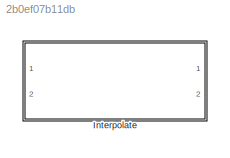
MODEL slx_2b0ef07b11db
KIND library
CONFIG AbsTol = auto
CONFIG EnableMultiTasking = off
CONFIG FixedStep = auto
CONFIG MaxStep = auto
CONFIG MinStep = auto
CONFIG RelTol = 1e-3
CONFIG SampleTimeConstraint = Unconstrained
CONFIG Solver = VariableStepAuto
CONFIG SolverName = VariableStepAuto
CONFIG StartTime = 0.0
CONFIG StopTime = 10.0
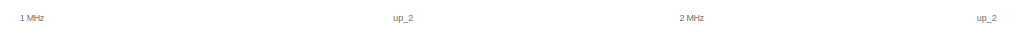
[diagram: Interpolate - part 1/6, top left region]
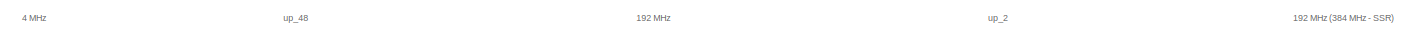
[diagram: Interpolate - part 2/6, top center region]
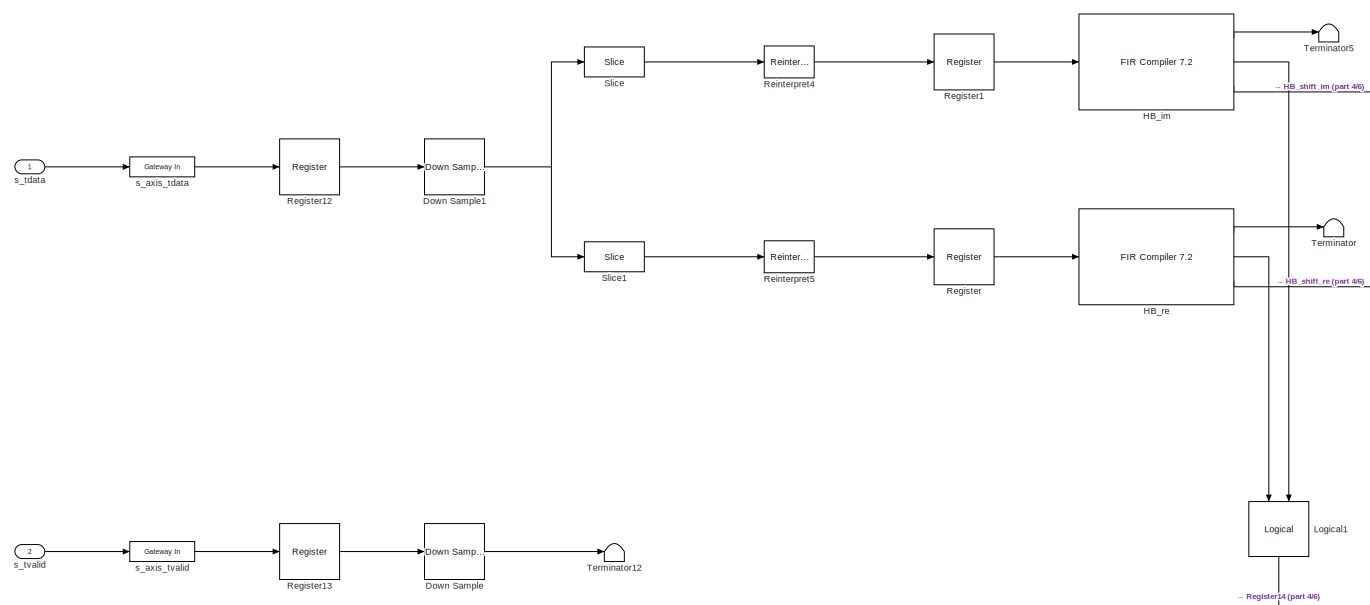
[diagram: Interpolate - part 3/6, middle left region]
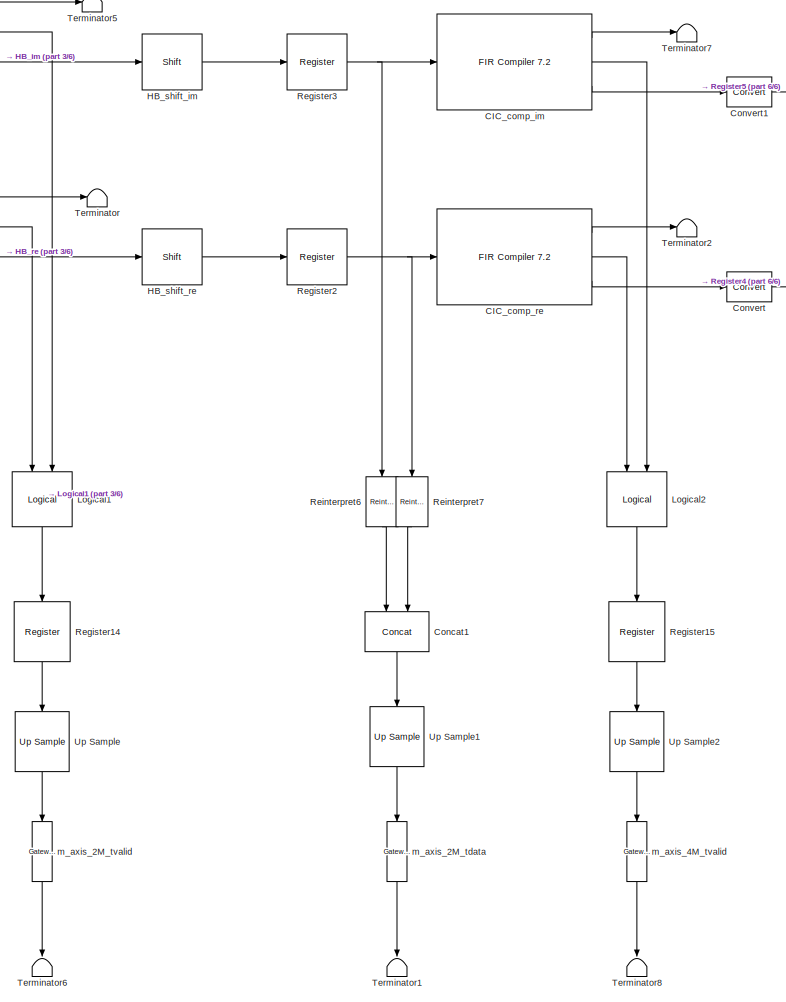
[diagram: Interpolate - part 4/6, center side, full height]
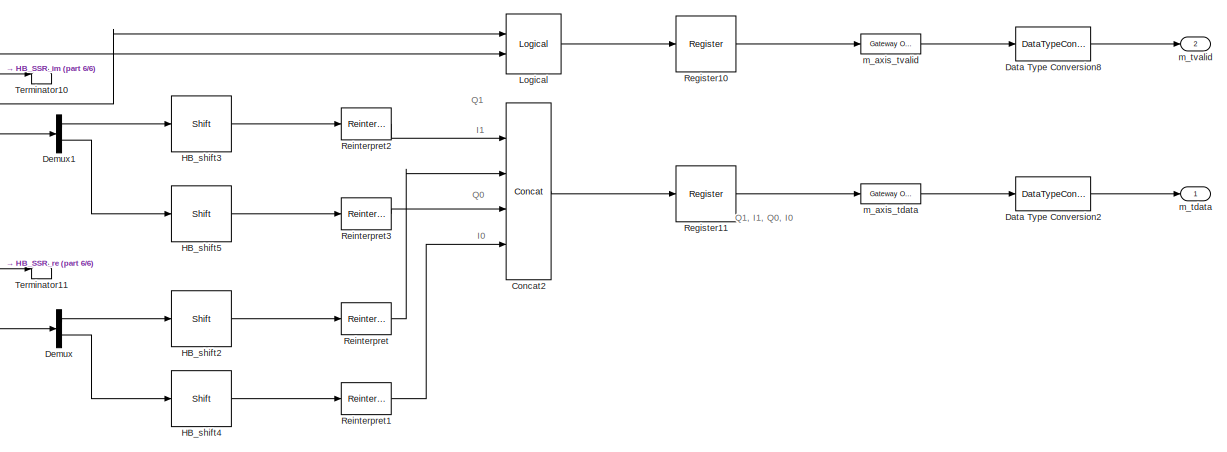
[diagram: Interpolate - part 5/6, top right region]
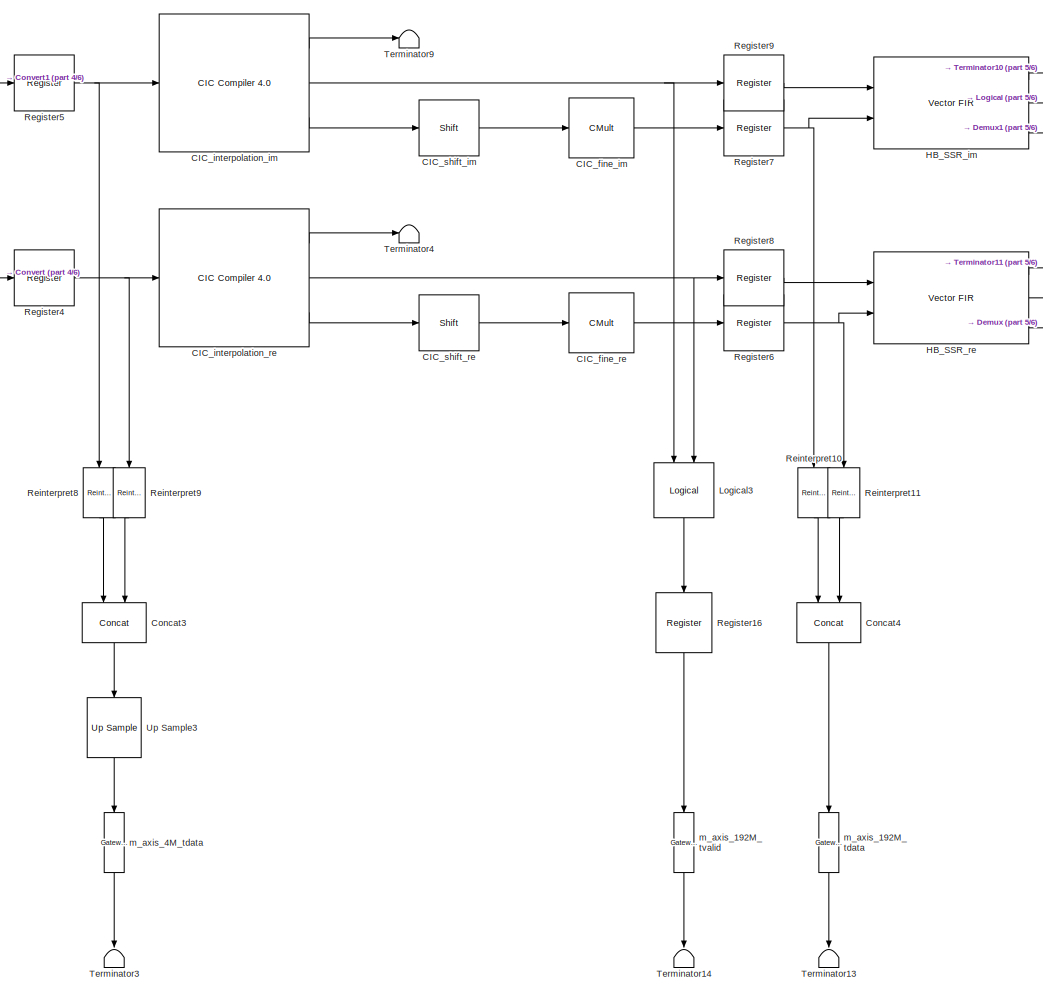
[diagram: Interpolate - part 6/6, center side, full height]
BLOCK [SubSystem] Interpolate
  Ports = [2, 2]
  RequestExecContextInheritance = off
BLOCK [Reference] Interpolate/CIC_comp_im  REF=xbsIndex_r4/FIR Compiler 7.2 
  Ports = [1, 3]
  SourceBlock = xbsIndex_r4/FIR Compiler 7.2
  SourceType = Xilinx FIR Compiler 7.2 Block
BLOCK [Reference] Interpolate/CIC_comp_re  REF=xbsIndex_r4/FIR Compiler 7.2 
  Ports = [1, 3]
  SourceBlock = xbsIndex_r4/FIR Compiler 7.2
  SourceType = Xilinx FIR Compiler 7.2 Block
BLOCK [Reference] Interpolate/CIC_fine_im  REF=xbsIndex_r4/CMult
  Ports = [1, 1]
  SourceBlock = xbsIndex_r4/CMult
  SourceType = Xilinx Constant Multiplier Block
BLOCK [Reference] Interpolate/CIC_fine_re  REF=xbsIndex_r4/CMult
  Ports = [1, 1]
  SourceBlock = xbsIndex_r4/CMult
  SourceType = Xilinx Constant Multiplier Block
BLOCK [Reference] Interpolate/CIC_interpolation_im  REF=xbsIndex_r4/CIC Compiler 4.0 
  Ports = [1, 3]
  SourceBlock = xbsIndex_r4/CIC Compiler 4.0
  SourceType = Xilinx CIC Compiler 4.0 Block
BLOCK [Reference] Interpolate/CIC_interpolation_re  REF=xbsIndex_r4/CIC Compiler 4.0 
  Ports = [1, 3]
  SourceBlock = xbsIndex_r4/CIC Compiler 4.0
  SourceType = Xilinx CIC Compiler 4.0 Block
BLOCK [Reference] Interpolate/CIC_shift_im  REF=xbsIndex_r4/Shift
  Ports = [1, 1]
  SourceBlock = xbsIndex_r4/Shift
  SourceType = Xilinx Binary Shift Operator Block
BLOCK [Reference] Interpolate/CIC_shift_re  REF=xbsIndex_r4/Shift
  Ports = [1, 1]
  SourceBlock = xbsIndex_r4/Shift
  SourceType = Xilinx Binary Shift Operator Block
BLOCK [Reference] Interpolate/Concat1  REF=xbsIndex_r4/Concat
  NameLocation = right
  Ports = [2, 1]
  SourceBlock = xbsIndex_r4/Concat
  SourceType = Xilinx Bus Concatenator Block
BLOCK [Reference] Interpolate/Concat2  REF=xbsIndex_r4/Concat
  Ports = [4, 1]
  SourceBlock = xbsIndex_r4/Concat
  SourceType = Xilinx Bus Concatenator Block
BLOCK [Reference] Interpolate/Concat3  REF=xbsIndex_r4/Concat
  NameLocation = right
  Ports = [2, 1]
  SourceBlock = xbsIndex_r4/Concat
  SourceType = Xilinx Bus Concatenator Block
BLOCK [Reference] Interpolate/Concat4  REF=xbsIndex_r4/Concat
  NameLocation = right
  Ports = [2, 1]
  SourceBlock = xbsIndex_r4/Concat
  SourceType = Xilinx Bus Concatenator Block
BLOCK [Reference] Interpolate/Convert  REF=xbsIndex_r4/Convert
  Ports = [1, 1]
  SourceBlock = xbsIndex_r4/Convert
  SourceType = Xilinx Type Converter Block
BLOCK [Reference] Interpolate/Convert1  REF=xbsIndex_r4/Convert
  Ports = [1, 1]
  SourceBlock = xbsIndex_r4/Convert
  SourceType = Xilinx Type Converter Block
BLOCK [DataTypeConversion] Interpolate/Data Type Conversion2
  ConvertRealWorld = Stored Integer (SI)
  OutDataTypeStr = uint64
  RndMeth = Floor
  SaturateOnIntegerOverflow = off
BLOCK [DataTypeConversion] Interpolate/Data Type Conversion8
  ConvertRealWorld = Stored Integer (SI)
  OutDataTypeStr = boolean
  RndMeth = Floor
  SaturateOnIntegerOverflow = off
BLOCK [Demux] Interpolate/Demux
  Outputs = 2
  Ports = [1, 2]
BLOCK [Demux] Interpolate/Demux1
  Outputs = 2
  Ports = [1, 2]
BLOCK [Reference] Interpolate/Down Sample  REF=xbsIndex_r4/Down Sample
  Ports = [1, 1]
  SourceBlock = xbsIndex_r4/Down Sample
  SourceType = Xilinx Down Sampler Block
BLOCK [Reference] Interpolate/Down Sample1  REF=xbsIndex_r4/Down Sample
  Ports = [1, 1]
  SourceBlock = xbsIndex_r4/Down Sample
  SourceType = Xilinx Down Sampler Block
BLOCK [Reference] Interpolate/HB_SSR_im  REF=xrbsSSR_Library/Vector FIR
  Ports = [2, 3]
  SourceBlock = xrbsSSR_Library/Vector FIR
  SourceProductName = Xilinx SSR Blockset
  SourceType = Xilinx Vector FIR Compiler 7.2 Block
BLOCK [Reference] Interpolate/HB_SSR_re  REF=xrbsSSR_Library/Vector FIR
  Ports = [2, 3]
  SourceBlock = xrbsSSR_Library/Vector FIR
  SourceProductName = Xilinx SSR Blockset
  SourceType = Xilinx Vector FIR Compiler 7.2 Block
BLOCK [Reference] Interpolate/HB_im  REF=xbsIndex_r4/FIR Compiler 7.2 
  Ports = [1, 3]
  SourceBlock = xbsIndex_r4/FIR Compiler 7.2
  SourceType = Xilinx FIR Compiler 7.2 Block
BLOCK [Reference] Interpolate/HB_re  REF=xbsIndex_r4/FIR Compiler 7.2 
  Ports = [1, 3]
  SourceBlock = xbsIndex_r4/FIR Compiler 7.2
  SourceType = Xilinx FIR Compiler 7.2 Block
BLOCK [Reference] Interpolate/HB_shift2  REF=xbsIndex_r4/Shift
  Ports = [1, 1]
  SourceBlock = xbsIndex_r4/Shift
  SourceType = Xilinx Binary Shift Operator Block
BLOCK [Reference] Interpolate/HB_shift3  REF=xbsIndex_r4/Shift
  Ports = [1, 1]
  SourceBlock = xbsIndex_r4/Shift
  SourceType = Xilinx Binary Shift Operator Block
BLOCK [Reference] Interpolate/HB_shift4  REF=xbsIndex_r4/Shift
  Ports = [1, 1]
  SourceBlock = xbsIndex_r4/Shift
  SourceType = Xilinx Binary Shift Operator Block
BLOCK [Reference] Interpolate/HB_shift5  REF=xbsIndex_r4/Shift
  Ports = [1, 1]
  SourceBlock = xbsIndex_r4/Shift
  SourceType = Xilinx Binary Shift Operator Block
BLOCK [Reference] Interpolate/HB_shift_im  REF=xbsIndex_r4/Shift
  Ports = [1, 1]
  SourceBlock = xbsIndex_r4/Shift
  SourceType = Xilinx Binary Shift Operator Block
BLOCK [Reference] Interpolate/HB_shift_re  REF=xbsIndex_r4/Shift
  Ports = [1, 1]
  SourceBlock = xbsIndex_r4/Shift
  SourceType = Xilinx Binary Shift Operator Block
BLOCK [Reference] Interpolate/Logical  REF=xbsIndex_r4/Logical
  Ports = [2, 1]
  SourceBlock = xbsIndex_r4/Logical
  SourceType = Xilinx Logical Block Block
BLOCK [Reference] Interpolate/Logical1  REF=xbsIndex_r4/Logical
  NameLocation = left
  Ports = [2, 1]
  SourceBlock = xbsIndex_r4/Logical
  SourceType = Xilinx Logical Block Block
BLOCK [Reference] Interpolate/Logical2  REF=xbsIndex_r4/Logical
  NameLocation = left
  Ports = [2, 1]
  SourceBlock = xbsIndex_r4/Logical
  SourceType = Xilinx Logical Block Block
BLOCK [Reference] Interpolate/Logical3  REF=xbsIndex_r4/Logical
  NameLocation = left
  Ports = [2, 1]
  SourceBlock = xbsIndex_r4/Logical
  SourceType = Xilinx Logical Block Block
BLOCK [Reference] Interpolate/Register  REF=xbsIndex_r4/Register
  Ports = [1, 1]
  SourceBlock = xbsIndex_r4/Register
  SourceType = Xilinx Register Block
BLOCK [Reference] Interpolate/Register1  REF=xbsIndex_r4/Register
  Ports = [1, 1]
  SourceBlock = xbsIndex_r4/Register
  SourceType = Xilinx Register Block
BLOCK [Reference] Interpolate/Register10  REF=xbsIndex_r4/Register
  Ports = [1, 1]
  SourceBlock = xbsIndex_r4/Register
  SourceType = Xilinx Register Block
BLOCK [Reference] Interpolate/Register11  REF=xbsIndex_r4/Register
  Ports = [1, 1]
  SourceBlock = xbsIndex_r4/Register
  SourceType = Xilinx Register Block
BLOCK [Reference] Interpolate/Register12  REF=xbsIndex_r4/Register
  Ports = [1, 1]
  SourceBlock = xbsIndex_r4/Register
  SourceType = Xilinx Register Block
BLOCK [Reference] Interpolate/Register13  REF=xbsIndex_r4/Register
  Ports = [1, 1]
  SourceBlock = xbsIndex_r4/Register
  SourceType = Xilinx Register Block
BLOCK [Reference] Interpolate/Register14  REF=xbsIndex_r4/Register
  NameLocation = left
  Ports = [1, 1]
  SourceBlock = xbsIndex_r4/Register
  SourceType = Xilinx Register Block
BLOCK [Reference] Interpolate/Register15  REF=xbsIndex_r4/Register
  NameLocation = left
  Ports = [1, 1]
  SourceBlock = xbsIndex_r4/Register
  SourceType = Xilinx Register Block
BLOCK [Reference] Interpolate/Register16  REF=xbsIndex_r4/Register
  NameLocation = left
  Ports = [1, 1]
  SourceBlock = xbsIndex_r4/Register
  SourceType = Xilinx Register Block
BLOCK [Reference] Interpolate/Register2  REF=xbsIndex_r4/Register
  Ports = [1, 1]
  SourceBlock = xbsIndex_r4/Register
  SourceType = Xilinx Register Block
BLOCK [Reference] Interpolate/Register3  REF=xbsIndex_r4/Register
  Ports = [1, 1]
  SourceBlock = xbsIndex_r4/Register
  SourceType = Xilinx Register Block
BLOCK [Reference] Interpolate/Register4  REF=xbsIndex_r4/Register
  Ports = [1, 1]
  SourceBlock = xbsIndex_r4/Register
  SourceType = Xilinx Register Block
BLOCK [Reference] Interpolate/Register5  REF=xbsIndex_r4/Register
  Ports = [1, 1]
  SourceBlock = xbsIndex_r4/Register
  SourceType = Xilinx Register Block
BLOCK [Reference] Interpolate/Register6  REF=xbsIndex_r4/Register
  Ports = [1, 1]
  SourceBlock = xbsIndex_r4/Register
  SourceType = Xilinx Register Block
BLOCK [Reference] Interpolate/Register7  REF=xbsIndex_r4/Register
  Ports = [1, 1]
  SourceBlock = xbsIndex_r4/Register
  SourceType = Xilinx Register Block
BLOCK [Reference] Interpolate/Register8  REF=xbsIndex_r4/Register
  Ports = [1, 1]
  SourceBlock = xbsIndex_r4/Register
  SourceType = Xilinx Register Block
BLOCK [Reference] Interpolate/Register9  REF=xbsIndex_r4/Register
  Ports = [1, 1]
  SourceBlock = xbsIndex_r4/Register
  SourceType = Xilinx Register Block
BLOCK [Reference] Interpolate/Reinterpret  REF=xbsIndex_r4/Reinterpret
  Ports = [1, 1]
  SourceBlock = xbsIndex_r4/Reinterpret
  SourceType = Xilinx Type Reinterpreter Block
BLOCK [Reference] Interpolate/Reinterpret1  REF=xbsIndex_r4/Reinterpret
  Ports = [1, 1]
  SourceBlock = xbsIndex_r4/Reinterpret
  SourceType = Xilinx Type Reinterpreter Block
BLOCK [Reference] Interpolate/Reinterpret10  REF=xbsIndex_r4/Reinterpret
  NameLocation = left
  Ports = [1, 1]
  SourceBlock = xbsIndex_r4/Reinterpret
  SourceType = Xilinx Type Reinterpreter Block
BLOCK [Reference] Interpolate/Reinterpret11  REF=xbsIndex_r4/Reinterpret
  NameLocation = left
  Ports = [1, 1]
  SourceBlock = xbsIndex_r4/Reinterpret
  SourceType = Xilinx Type Reinterpreter Block
BLOCK [Reference] Interpolate/Reinterpret2  REF=xbsIndex_r4/Reinterpret
  Ports = [1, 1]
  SourceBlock = xbsIndex_r4/Reinterpret
  SourceType = Xilinx Type Reinterpreter Block
BLOCK [Reference] Interpolate/Reinterpret3  REF=xbsIndex_r4/Reinterpret
  Ports = [1, 1]
  SourceBlock = xbsIndex_r4/Reinterpret
  SourceType = Xilinx Type Reinterpreter Block
BLOCK [Reference] Interpolate/Reinterpret4  REF=xbsIndex_r4/Reinterpret
  Ports = [1, 1]
  SourceBlock = xbsIndex_r4/Reinterpret
  SourceType = Xilinx Type Reinterpreter Block
BLOCK [Reference] Interpolate/Reinterpret5  REF=xbsIndex_r4/Reinterpret
  Ports = [1, 1]
  SourceBlock = xbsIndex_r4/Reinterpret
  SourceType = Xilinx Type Reinterpreter Block
BLOCK [Reference] Interpolate/Reinterpret6  REF=xbsIndex_r4/Reinterpret
  NameLocation = left
  Ports = [1, 1]
  SourceBlock = xbsIndex_r4/Reinterpret
  SourceType = Xilinx Type Reinterpreter Block
BLOCK [Reference] Interpolate/Reinterpret7  REF=xbsIndex_r4/Reinterpret
  NameLocation = left
  Ports = [1, 1]
  SourceBlock = xbsIndex_r4/Reinterpret
  SourceType = Xilinx Type Reinterpreter Block
BLOCK [Reference] Interpolate/Reinterpret8  REF=xbsIndex_r4/Reinterpret
  NameLocation = left
  Ports = [1, 1]
  SourceBlock = xbsIndex_r4/Reinterpret
  SourceType = Xilinx Type Reinterpreter Block
BLOCK [Reference] Interpolate/Reinterpret9  REF=xbsIndex_r4/Reinterpret
  NameLocation = left
  Ports = [1, 1]
  SourceBlock = xbsIndex_r4/Reinterpret
  SourceType = Xilinx Type Reinterpreter Block
BLOCK [Reference] Interpolate/Slice  REF=xbsIndex_r4/Slice
  Ports = [1, 1]
  SourceBlock = xbsIndex_r4/Slice
  SourceType = Xilinx Bit Slice Extractor Block
BLOCK [Reference] Interpolate/Slice1  REF=xbsIndex_r4/Slice
  Ports = [1, 1]
  SourceBlock = xbsIndex_r4/Slice
  SourceType = Xilinx Bit Slice Extractor Block
BLOCK [Terminator] Interpolate/Terminator
BLOCK [Terminator] Interpolate/Terminator1
  NameLocation = left
BLOCK [Terminator] Interpolate/Terminator10
BLOCK [Terminator] Interpolate/Terminator11
BLOCK [Terminator] Interpolate/Terminator12
BLOCK [Terminator] Interpolate/Terminator13
  NameLocation = left
BLOCK [Terminator] Interpolate/Terminator14
  NameLocation = left
BLOCK [Terminator] Interpolate/Terminator2
BLOCK [Terminator] Interpolate/Terminator3
  NameLocation = left
BLOCK [Terminator] Interpolate/Terminator4
BLOCK [Terminator] Interpolate/Terminator5
BLOCK [Terminator] Interpolate/Terminator6
  NameLocation = left
BLOCK [Terminator] Interpolate/Terminator7
BLOCK [Terminator] Interpolate/Terminator8
  NameLocation = left
BLOCK [Terminator] Interpolate/Terminator9
BLOCK [Reference] Interpolate/Up Sample  REF=xbsIndex_r4/Up Sample
  NameLocation = left
  Ports = [1, 1]
  SourceBlock = xbsIndex_r4/Up Sample
  SourceType = Xilinx Up Sampler Block
BLOCK [Reference] Interpolate/Up Sample1  REF=xbsIndex_r4/Up Sample
  NameLocation = left
  Ports = [1, 1]
  SourceBlock = xbsIndex_r4/Up Sample
  SourceType = Xilinx Up Sampler Block
BLOCK [Reference] Interpolate/Up Sample2  REF=xbsIndex_r4/Up Sample
  NameLocation = left
  Ports = [1, 1]
  SourceBlock = xbsIndex_r4/Up Sample
  SourceType = Xilinx Up Sampler Block
BLOCK [Reference] Interpolate/Up Sample3  REF=xbsIndex_r4/Up Sample
  NameLocation = left
  Ports = [1, 1]
  SourceBlock = xbsIndex_r4/Up Sample
  SourceType = Xilinx Up Sampler Block
BLOCK [Reference] Interpolate/m_axis_192M_tdata  REF=xbsIndex_r4/Gateway Out
  NameLocation = left
  Ports = [1, 1]
  SourceBlock = xbsIndex_r4/Gateway Out
  SourceType = Xilinx Gateway Out Block
BLOCK [Reference] Interpolate/m_axis_192M_tvalid  REF=xbsIndex_r4/Gateway Out
  NameLocation = left
  Ports = [1, 1]
  SourceBlock = xbsIndex_r4/Gateway Out
  SourceType = Xilinx Gateway Out Block
BLOCK [Reference] Interpolate/m_axis_2M_tdata  REF=xbsIndex_r4/Gateway Out
  NameLocation = left
  Ports = [1, 1]
  SourceBlock = xbsIndex_r4/Gateway Out
  SourceType = Xilinx Gateway Out Block
BLOCK [Reference] Interpolate/m_axis_2M_tvalid  REF=xbsIndex_r4/Gateway Out
  NameLocation = left
  Ports = [1, 1]
  SourceBlock = xbsIndex_r4/Gateway Out
  SourceType = Xilinx Gateway Out Block
BLOCK [Reference] Interpolate/m_axis_4M_tdata  REF=xbsIndex_r4/Gateway Out
  NameLocation = left
  Ports = [1, 1]
  SourceBlock = xbsIndex_r4/Gateway Out
  SourceType = Xilinx Gateway Out Block
BLOCK [Reference] Interpolate/m_axis_4M_tvalid  REF=xbsIndex_r4/Gateway Out
  NameLocation = left
  Ports = [1, 1]
  SourceBlock = xbsIndex_r4/Gateway Out
  SourceType = Xilinx Gateway Out Block
BLOCK [Reference] Interpolate/m_axis_tdata  REF=xbsIndex_r4/Gateway Out
  Ports = [1, 1]
  SourceBlock = xbsIndex_r4/Gateway Out
  SourceType = Xilinx Gateway Out Block
BLOCK [Reference] Interpolate/m_axis_tvalid  REF=xbsIndex_r4/Gateway Out
  Ports = [1, 1]
  SourceBlock = xbsIndex_r4/Gateway Out
  SourceType = Xilinx Gateway Out Block
BLOCK [Outport] Interpolate/m_tdata
BLOCK [Outport] Interpolate/m_tvalid
  Port = 2
BLOCK [Reference] Interpolate/s_axis_tdata  REF=xbsIndex_r4/Gateway In
  Ports = [1, 1]
  SourceBlock = xbsIndex_r4/Gateway In
  SourceType = Xilinx Gateway In Block
BLOCK [Reference] Interpolate/s_axis_tvalid  REF=xbsIndex_r4/Gateway In
  Ports = [1, 1]
  SourceBlock = xbsIndex_r4/Gateway In
  SourceType = Xilinx Gateway In Block
BLOCK [Inport] Interpolate/s_tdata
BLOCK [Inport] Interpolate/s_tvalid
  Port = 2
ANNOTATION Interpolate: 1 MHz
ANNOTATION Interpolate: 192 MHz
ANNOTATION Interpolate: 192 MHz (384 MHz - SSR)
ANNOTATION Interpolate: 2 MHz
ANNOTATION Interpolate: 4 MHz
ANNOTATION Interpolate: up_2
ANNOTATION Interpolate: up_48
ANNOTATION Interpolate: I0
ANNOTATION Interpolate: I1
ANNOTATION Interpolate: Q0
ANNOTATION Interpolate: Q1
ANNOTATION Interpolate: Q1, I1, Q0, I0
LINE Interpolate/CIC_comp_im:1 -> Interpolate/Terminator7:1
LINE Interpolate/CIC_comp_im:2 -> Interpolate/Logical2:2
LINE Interpolate/CIC_comp_im:3 -> Interpolate/Convert1:1
LINE Interpolate/CIC_comp_re:1 -> Interpolate/Terminator2:1
LINE Interpolate/CIC_comp_re:2 -> Interpolate/Logical2:1
LINE Interpolate/CIC_comp_re:3 -> Interpolate/Convert:1
LINE Interpolate/CIC_fine_im:1 -> Interpolate/Register7:1
LINE Interpolate/CIC_fine_re:1 -> Interpolate/Register6:1
LINE Interpolate/CIC_interpolation_im:1 -> Interpolate/Terminator9:1
NET Interpolate/CIC_interpolation_im:2 -> Interpolate/Logical3:1, Interpolate/Register9:1
LINE Interpolate/CIC_interpolation_im:3 -> Interpolate/CIC_shift_im:1
LINE Interpolate/CIC_interpolation_re:1 -> Interpolate/Terminator4:1
NET Interpolate/CIC_interpolation_re:2 -> Interpolate/Logical3:2, Interpolate/Register8:1
LINE Interpolate/CIC_interpolation_re:3 -> Interpolate/CIC_shift_re:1
LINE Interpolate/CIC_shift_im:1 -> Interpolate/CIC_fine_im:1
LINE Interpolate/CIC_shift_re:1 -> Interpolate/CIC_fine_re:1
LINE Interpolate/Concat1:1 -> Interpolate/Up Sample1:1
LINE Interpolate/Concat2:1 -> Interpolate/Register11:1
LINE Interpolate/Concat3:1 -> Interpolate/Up Sample3:1
LINE Interpolate/Concat4:1 -> Interpolate/m_axis_192M_tdata:1
LINE Interpolate/Convert1:1 -> Interpolate/Register5:1
LINE Interpolate/Convert:1 -> Interpolate/Register4:1
LINE Interpolate/Data Type Conversion2:1 -> Interpolate/m_tdata:1
LINE Interpolate/Data Type Conversion8:1 -> Interpolate/m_tvalid:1
LINE Interpolate/Demux1:1 -> Interpolate/HB_shift3:1
LINE Interpolate/Demux1:2 -> Interpolate/HB_shift5:1
LINE Interpolate/Demux:1 -> Interpolate/HB_shift2:1
LINE Interpolate/Demux:2 -> Interpolate/HB_shift4:1
NET Interpolate/Down Sample1:1 -> Interpolate/Slice1:1, Interpolate/Slice:1
LINE Interpolate/Down Sample:1 -> Interpolate/Terminator12:1
LINE Interpolate/HB_SSR_im:1 -> Interpolate/Terminator10:1
LINE Interpolate/HB_SSR_im:2 -> Interpolate/Logical:1
LINE Interpolate/HB_SSR_im:3 -> Interpolate/Demux1:1
LINE Interpolate/HB_SSR_re:1 -> Interpolate/Terminator11:1
LINE Interpolate/HB_SSR_re:2 -> Interpolate/Logical:2
LINE Interpolate/HB_SSR_re:3 -> Interpolate/Demux:1
LINE Interpolate/HB_im:1 -> Interpolate/Terminator5:1
LINE Interpolate/HB_im:2 -> Interpolate/Logical1:2
LINE Interpolate/HB_im:3 -> Interpolate/HB_shift_im:1
LINE Interpolate/HB_re:1 -> Interpolate/Terminator:1
LINE Interpolate/HB_re:2 -> Interpolate/Logical1:1
LINE Interpolate/HB_re:3 -> Interpolate/HB_shift_re:1
LINE Interpolate/HB_shift2:1 -> Interpolate/Reinterpret:1
LINE Interpolate/HB_shift3:1 -> Interpolate/Reinterpret2:1
LINE Interpolate/HB_shift4:1 -> Interpolate/Reinterpret1:1
LINE Interpolate/HB_shift5:1 -> Interpolate/Reinterpret3:1
LINE Interpolate/HB_shift_im:1 -> Interpolate/Register3:1
LINE Interpolate/HB_shift_re:1 -> Interpolate/Register2:1
LINE Interpolate/Logical1:1 -> Interpolate/Register14:1
LINE Interpolate/Logical2:1 -> Interpolate/Register15:1
LINE Interpolate/Logical3:1 -> Interpolate/Register16:1
LINE Interpolate/Logical:1 -> Interpolate/Register10:1
LINE Interpolate/Register10:1 -> Interpolate/m_axis_tvalid:1
LINE Interpolate/Register11:1 -> Interpolate/m_axis_tdata:1
LINE Interpolate/Register12:1 -> Interpolate/Down Sample1:1
LINE Interpolate/Register13:1 -> Interpolate/Down Sample:1
LINE Interpolate/Register14:1 -> Interpolate/Up Sample:1
LINE Interpolate/Register15:1 -> Interpolate/Up Sample2:1
LINE Interpolate/Register16:1 -> Interpolate/m_axis_192M_tvalid:1
LINE Interpolate/Register1:1 -> Interpolate/HB_im:1
NET Interpolate/Register2:1 -> Interpolate/CIC_comp_re:1, Interpolate/Reinterpret7:1
NET Interpolate/Register3:1 -> Interpolate/CIC_comp_im:1, Interpolate/Reinterpret6:1
NET Interpolate/Register4:1 -> Interpolate/CIC_interpolation_re:1, Interpolate/Reinterpret9:1
NET Interpolate/Register5:1 -> Interpolate/CIC_interpolation_im:1, Interpolate/Reinterpret8:1
NET Interpolate/Register6:1 -> Interpolate/HB_SSR_re:2, Interpolate/Reinterpret11:1
NET Interpolate/Register7:1 -> Interpolate/HB_SSR_im:2, Interpolate/Reinterpret10:1
LINE Interpolate/Register8:1 -> Interpolate/HB_SSR_re:1
LINE Interpolate/Register9:1 -> Interpolate/HB_SSR_im:1
LINE Interpolate/Register:1 -> Interpolate/HB_re:1
LINE Interpolate/Reinterpret10:1 -> Interpolate/Concat4:1
LINE Interpolate/Reinterpret11:1 -> Interpolate/Concat4:2
LINE Interpolate/Reinterpret1:1 -> Interpolate/Concat2:4
LINE Interpolate/Reinterpret2:1 -> Interpolate/Concat2:1
LINE Interpolate/Reinterpret3:1 -> Interpolate/Concat2:3
LINE Interpolate/Reinterpret4:1 -> Interpolate/Register1:1
LINE Interpolate/Reinterpret5:1 -> Interpolate/Register:1
LINE Interpolate/Reinterpret6:1 -> Interpolate/Concat1:1
LINE Interpolate/Reinterpret7:1 -> Interpolate/Concat1:2
LINE Interpolate/Reinterpret8:1 -> Interpolate/Concat3:1
LINE Interpolate/Reinterpret9:1 -> Interpolate/Concat3:2
LINE Interpolate/Reinterpret:1 -> Interpolate/Concat2:2
LINE Interpolate/Slice1:1 -> Interpolate/Reinterpret5:1
LINE Interpolate/Slice:1 -> Interpolate/Reinterpret4:1
LINE Interpolate/Up Sample1:1 -> Interpolate/m_axis_2M_tdata:1
LINE Interpolate/Up Sample2:1 -> Interpolate/m_axis_4M_tvalid:1
LINE Interpolate/Up Sample3:1 -> Interpolate/m_axis_4M_tdata:1
LINE Interpolate/Up Sample:1 -> Interpolate/m_axis_2M_tvalid:1
LINE Interpolate/m_axis_192M_tdata:1 -> Interpolate/Terminator13:1
LINE Interpolate/m_axis_192M_tvalid:1 -> Interpolate/Terminator14:1
LINE Interpolate/m_axis_2M_tdata:1 -> Interpolate/Terminator1:1
LINE Interpolate/m_axis_2M_tvalid:1 -> Interpolate/Terminator6:1
LINE Interpolate/m_axis_4M_tdata:1 -> Interpolate/Terminator3:1
LINE Interpolate/m_axis_4M_tvalid:1 -> Interpolate/Terminator8:1
LINE Interpolate/m_axis_tdata:1 -> Interpolate/Data Type Conversion2:1
LINE Interpolate/m_axis_tvalid:1 -> Interpolate/Data Type Conversion8:1
LINE Interpolate/s_axis_tdata:1 -> Interpolate/Register12:1
LINE Interpolate/s_axis_tvalid:1 -> Interpolate/Register13:1
LINE Interpolate/s_tdata:1 -> Interpolate/s_axis_tdata:1
LINE Interpolate/s_tvalid:1 -> Interpolate/s_axis_tvalid:1
note: NET lines group one-source signal fan-out (src -> all destinations, sorted); 1:1 wires keep LINE
